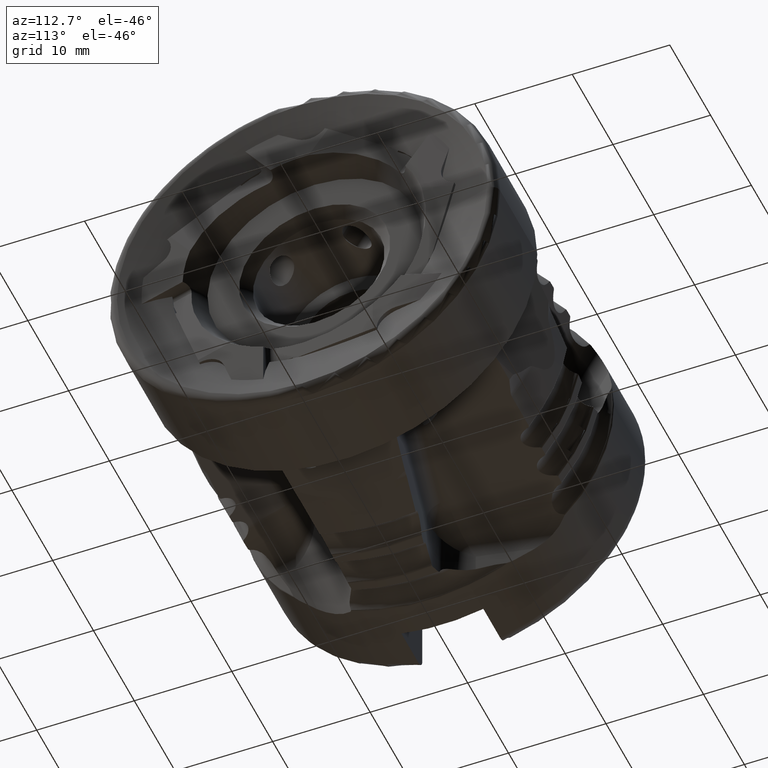
[diagram: clean part render]
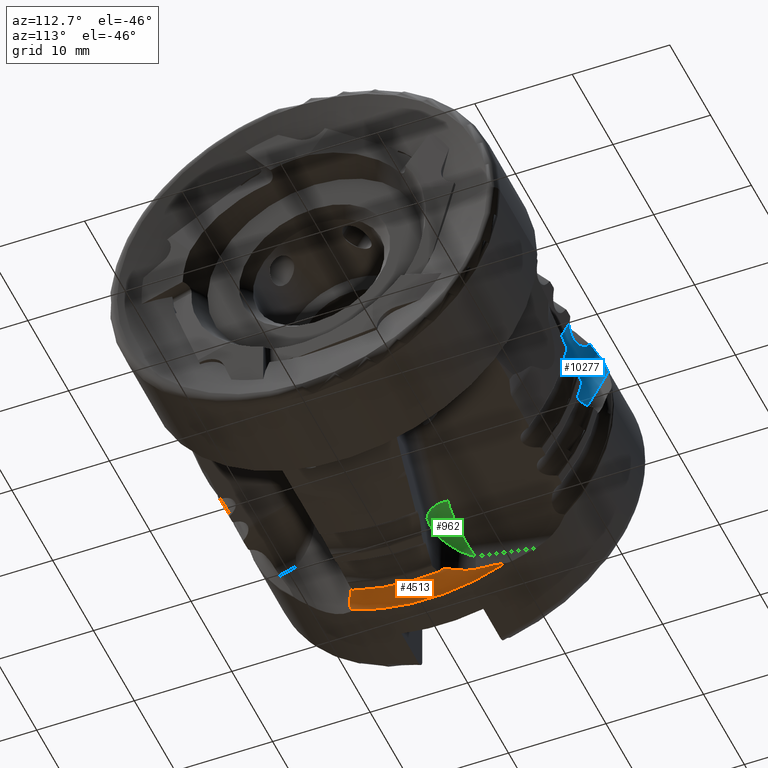
[diagram: same view with three faces highlighted in distinct colors, each labeled with its STEP entity id]
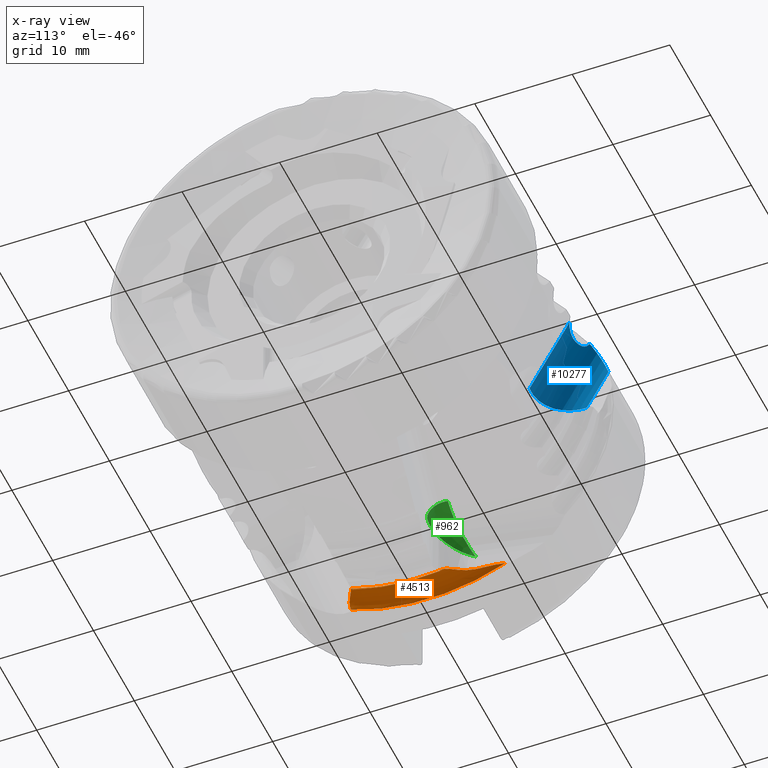
[diagram: x-ray of the same camera — body ghosted, the three highlighted faces saturated]
A machine part, auxiliary view with three faces highlighted in distinct colors.
The next image is the same camera in x-ray (body ghosted, the three faces saturated) — at least one of them is partly hidden behind the body in this view.
Their STEP definitions:

[orange] entity #4513 — the highlighted toroidal blend (fillet) surface has major radius 19.4 mm and minor (blend) radius 1.5 mm.
#80 = CARTESIAN_POINT ( 'NONE',  ( -29.64377987139388200, 4.790457688876037100, -17.45221796326517700 ) ) ;
#127 = CARTESIAN_POINT ( 'NONE',  ( -28.91074740480360100, 3.444622876629646500, -17.56163586437617500 ) ) ;
#231 = CARTESIAN_POINT ( 'NONE',  ( -30.20495896450877600, 7.430597747154335400, -17.11533831369642300 ) ) ;
#382 = FACE_OUTER_BOUND ( 'NONE', #8785, .T. ) ;
#664 = CARTESIAN_POINT ( 'NONE',  ( -27.99914979133900800, -6.909522613455851400, -16.83099462328203400 ) ) ;
#702 = CARTESIAN_POINT ( 'NONE',  ( -30.18893906240986500, -7.957240056837507700, -16.84482363932107400 ) ) ;
#980 = CARTESIAN_POINT ( 'NONE',  ( -28.56440808433381000, 3.074122376843445800, -17.66729879817631900 ) ) ;
#1089 = CARTESIAN_POINT ( 'NONE',  ( -30.27883005035329200, 7.778133881838410700, -17.12157753467884500 ) ) ;
#1121 = B_SPLINE_CURVE_WITH_KNOTS ( 'NONE', 3,
 ( #3964, #8922, #5634, #664, #6478, #1497, #7315, #2326, #8135, #3184, #8956, #3997, #9812, #4816, #10679, #5663, #702, #6510, #1538, #7345 ),
 .UNSPECIFIED., .F., .F.,
 ( 4, 2, 2, 2, 2, 2, 2, 2, 2, 4 ),
 ( 3.439349052326204900E-016, 0.0004581088631635120600, 0.0009162177263266802100, 0.001374326589489848400, 0.001832435452653016500, 0.002290544315816184700, 0.002748653178979352800, 0.003206762042142521000, 0.003435816473724108100, 0.003664870905305694800 ),
 .UNSPECIFIED. ) ;
#1497 = CARTESIAN_POINT ( 'NONE',  ( -28.33852763778335800, -7.066157082456153500, -16.55855417481301100 ) ) ;
#1538 = CARTESIAN_POINT ( 'NONE',  ( -30.28133301782327900, -7.933937765645276300, -17.05704149086403000 ) ) ;
#1555 = DIRECTION ( 'NONE',  ( -1.000000000000000000, -0.0000000000000000000, -0.0000000000000000000 ) ) ;
#1750 = B_SPLINE_CURVE_WITH_KNOTS ( 'NONE', 3,
 ( #8362, #80, #9236, #4265, #10095, #5102, #127, #5937, #980, #6789, #1810, #7610, #2652, #8444, #3496, #9268 ),
 .UNSPECIFIED., .F., .F.,
 ( 4, 2, 2, 2, 2, 2, 2, 4 ),
 ( 2.110738645395145900E-016, 0.001025636434929260900, 0.001538454652393783400, 0.002051272869858306300, 0.002564091087322829200, 0.003076909304787351700, 0.003589727522251874100, 0.004102545739716396600 ),
 .UNSPECIFIED. ) ;
#1810 = CARTESIAN_POINT ( 'NONE',  ( -28.19384683758602600, 2.766471363224603000, -17.85595326169269000 ) ) ;
#1952 = VERTEX_POINT ( 'NONE', #2764 ) ;
#2293 = VERTEX_POINT ( 'NONE', #8409 ) ;
#2326 = CARTESIAN_POINT ( 'NONE',  ( -28.71774690247424600, -7.247839137565280900, -16.37303150340224500 ) ) ;
#2339 = TOROIDAL_SURFACE ( 'NONE', #8938, 19.40000000000000600, 1.500000000000000900 ) ;
#2478 = CARTESIAN_POINT ( 'NONE',  ( -27.53622823337709100, -6.652552014576592400, -17.54676708234665100 ) ) ;
#2585 = CARTESIAN_POINT ( 'NONE',  ( -27.65313956114070100, -6.731855317377479300, -17.30269661287275100 ) ) ;
#2652 = CARTESIAN_POINT ( 'NONE',  ( -27.83836801739940700, 2.535188794796212600, -18.15250080671034600 ) ) ;
#2764 = CARTESIAN_POINT ( 'NONE',  ( -30.30346826946635700, 7.894047589321580500, -17.14010247938594800 ) ) ;
#2975 = CARTESIAN_POINT ( 'NONE',  ( -27.49653173053660300, 0.0000000000000000000, 0.0000000000000000000 ) ) ;
#3184 = CARTESIAN_POINT ( 'NONE',  ( -29.11889385570934500, -7.455456270013415000, -16.28469853053570300 ) ) ;
#3328 = EDGE_CURVE ( 'NONE', #2293, #8022, #1750, .T. ) ;
#3349 = EDGE_CURVE ( 'NONE', #2293, #1952, #3817, .T. ) ;
#3496 = CARTESIAN_POINT ( 'NONE',  ( -27.55584095093114900, 2.387549608182169000, -18.56048647098283800 ) ) ;
#3541 = CIRCLE ( 'NONE', #7152, 18.87058823529417900 ) ;
#3565 = B_SPLINE_CURVE_WITH_KNOTS ( 'NONE', 3,
 ( #4964, #4105, #2478, #10828 ),
 .UNSPECIFIED., .F., .F.,
 ( 4, 4 ),
 ( 0.004915268141662715000, 0.005335426860116687000 ),
 .UNSPECIFIED. ) ;
#3569 = CARTESIAN_POINT ( 'NONE',  ( -29.81276730862609300, 5.585481074202304400, -17.33206133602459400 ) ) ;
#3750 = EDGE_CURVE ( 'NONE', #5972, #1952, #10034, .T. ) ;
#3757 = EDGE_CURVE ( 'NONE', #6561, #8581, #3565, .T. ) ;
#3809 = DIRECTION ( 'NONE',  ( 0.0000000000000000000, 0.0000000000000000000, 1.000000000000000000 ) ) ;
#3817 = B_SPLINE_CURVE_WITH_KNOTS ( 'NONE', 3,
 ( #7690, #3569, #9349, #4363, #10209, #5211, #231, #6044, #1089, #6892 ),
 .UNSPECIFIED., .F., .F.,
 ( 4, 2, 2, 2, 4 ),
 ( 0.003966206436067385200, 0.005390308381826081100, 0.006102359354705428100, 0.006458384841145104300, 0.006814410327584779500 ),
 .UNSPECIFIED. ) ;
#3964 = CARTESIAN_POINT ( 'NONE',  ( -27.65313956114070100, -6.731855317377479300, -17.30269661287275100 ) ) ;
#3972 = EDGE_CURVE ( 'NONE', #8022, #8581, #3541, .T. ) ;
#3997 = CARTESIAN_POINT ( 'NONE',  ( -29.52391000557897300, -7.678980970541595700, -16.31146433486070500 ) ) ;
#4105 = CARTESIAN_POINT ( 'NONE',  ( -27.58785649824254800, -6.692897170091943500, -17.42259746141228800 ) ) ;
#4141 = DIRECTION ( 'NONE',  ( 1.000000000000000000, 0.0000000000000000000, 0.0000000000000000000 ) ) ;
#4218 = ORIENTED_EDGE ( 'NONE', *, *, #3328, .T. ) ;
#4265 = CARTESIAN_POINT ( 'NONE',  ( -29.29694184733125400, 4.008941027807605200, -17.49843725448994600 ) ) ;
#4363 = CARTESIAN_POINT ( 'NONE',  ( -30.05732499002264600, 6.736034505604846100, -17.17033854051695100 ) ) ;
#4513 = ADVANCED_FACE ( 'NONE', ( #382 ), #2339, .F. ) ;
#4520 = ORIENTED_EDGE ( 'NONE', *, *, #3972, .T. ) ;
#4816 = CARTESIAN_POINT ( 'NONE',  ( -29.90274254800098700, -7.879389711942336800, -16.48816031181688000 ) ) ;
#4863 = DIRECTION ( 'NONE',  ( 0.0000000000000000000, 0.0000000000000000000, 1.000000000000000000 ) ) ;
#4895 = CARTESIAN_POINT ( 'NONE',  ( -27.49653173053660300, 2.360491634166904400, -18.72237109959769800 ) ) ;
#4964 = CARTESIAN_POINT ( 'NONE',  ( -27.65313956114070100, -6.731855317377479300, -17.30269661287275100 ) ) ;
#5102 = CARTESIAN_POINT ( 'NONE',  ( -29.01560462249150900, 3.578148630981833100, -17.54061041120928600 ) ) ;
#5211 = CARTESIAN_POINT ( 'NONE',  ( -30.18034154159472500, 7.314781878095082800, -17.12036071886312500 ) ) ;
#5269 = CARTESIAN_POINT ( 'NONE',  ( -30.30346826946338700, -7.916380327103159900, -17.12979926510164900 ) ) ;
#5634 = CARTESIAN_POINT ( 'NONE',  ( -27.80834080706495100, -6.817416021026183200, -17.05121354151513900 ) ) ;
#5663 = CARTESIAN_POINT ( 'NONE',  ( -30.14973779057751800, -7.955724373684228500, -16.77627133670408500 ) ) ;
#5727 = ORIENTED_EDGE ( 'NONE', *, *, #3757, .F. ) ;
#5937 = CARTESIAN_POINT ( 'NONE',  ( -28.68561604439862800, 3.192860460511549400, -17.62471495191580900 ) ) ;
#5972 = VERTEX_POINT ( 'NONE', #5269 ) ;
#6044 = CARTESIAN_POINT ( 'NONE',  ( -30.25420347415342100, 7.662274949955040900, -17.11623575627044900 ) ) ;
#6239 = AXIS2_PLACEMENT_3D ( 'NONE', #9109, #4141, #9965 ) ;
#6400 = EDGE_CURVE ( 'NONE', #6561, #5972, #1121, .T. ) ;
#6478 = CARTESIAN_POINT ( 'NONE',  ( -28.10756528070912500, -6.959283939913308200, -16.73033207503525700 ) ) ;
#6510 = CARTESIAN_POINT ( 'NONE',  ( -30.25430053356358300, -7.946294053369856900, -16.98451347487240400 ) ) ;
#6561 = VERTEX_POINT ( 'NONE', #2585 ) ;
#6789 = CARTESIAN_POINT ( 'NONE',  ( -28.31978897849353400, 2.862048167367027900, -17.78232068299098100 ) ) ;
#6892 = CARTESIAN_POINT ( 'NONE',  ( -30.30346826946635700, 7.894047589321580500, -17.14010247938594800 ) ) ;
#7152 = AXIS2_PLACEMENT_3D ( 'NONE', #2975, #8768, #3809 ) ;
#7315 = CARTESIAN_POINT ( 'NONE',  ( -28.46079535210618200, -7.123179069023799500, -16.48693461141973400 ) ) ;
#7345 = CARTESIAN_POINT ( 'NONE',  ( -30.30346826946338700, -7.916380327103159900, -17.12979926510164900 ) ) ;
#7610 = CARTESIAN_POINT ( 'NONE',  ( -27.95260830680334200, 2.602802632481749300, -18.04156460643386600 ) ) ;
#7690 = CARTESIAN_POINT ( 'NONE',  ( -29.71508046417889700, 5.125900604516077800, -17.40152047421253600 ) ) ;
#8022 = VERTEX_POINT ( 'NONE', #4895 ) ;
#8135 = CARTESIAN_POINT ( 'NONE',  ( -28.85197309704625100, -7.315381705899196300, -16.33141791564157300 ) ) ;
#8139 = ORIENTED_EDGE ( 'NONE', *, *, #6400, .T. ) ;
#8362 = CARTESIAN_POINT ( 'NONE',  ( -29.71508046417889700, 5.125900604516077800, -17.40152047421253600 ) ) ;
#8409 = CARTESIAN_POINT ( 'NONE',  ( -29.71508046417889700, 5.125900604516077800, -17.40152047421253600 ) ) ;
#8444 = CARTESIAN_POINT ( 'NONE',  ( -27.63799013213961300, 2.426617513607204100, -18.41485402074563300 ) ) ;
#8581 = VERTEX_POINT ( 'NONE', #10163 ) ;
#8768 = DIRECTION ( 'NONE',  ( -1.000000000000000000, -0.0000000000000000000, -0.0000000000000000000 ) ) ;
#8785 = EDGE_LOOP ( 'NONE', ( #5727, #8139, #9212, #9865, #4218, #4520 ) ) ;
#8922 = CARTESIAN_POINT ( 'NONE',  ( -27.72442183413433300, -6.774393537351670600, -17.17177743355745200 ) ) ;
#8938 = AXIS2_PLACEMENT_3D ( 'NONE', #9863, #1555, #4863 ) ;
#8956 = CARTESIAN_POINT ( 'NONE',  ( -29.25476609196908800, -7.529756949694280400, -16.27860318237120300 ) ) ;
#9109 = CARTESIAN_POINT ( 'NONE',  ( -30.30346826946338700, 0.0000000000000000000, 0.0000000000000000000 ) ) ;
#9212 = ORIENTED_EDGE ( 'NONE', *, *, #3750, .T. ) ;
#9236 = CARTESIAN_POINT ( 'NONE',  ( -29.53001696970838800, 4.468211847632515400, -17.46905390047686200 ) ) ;
#9268 = CARTESIAN_POINT ( 'NONE',  ( -27.49653173053660300, 2.360491634166904400, -18.72237109959769800 ) ) ;
#9349 = CARTESIAN_POINT ( 'NONE',  ( -29.91036695292679300, 6.044651299453819100, -17.25954888940381000 ) ) ;
#9812 = CARTESIAN_POINT ( 'NONE',  ( -29.65653682419578300, -7.753805805597897600, -16.35052963983952500 ) ) ;
#9863 = CARTESIAN_POINT ( 'NONE',  ( -28.89999999999999500, 0.0000000000000000000, 0.0000000000000000000 ) ) ;
#9865 = ORIENTED_EDGE ( 'NONE', *, *, #3349, .F. ) ;
#9965 = DIRECTION ( 'NONE',  ( 0.0000000000000000000, 0.0000000000000000000, -1.000000000000000000 ) ) ;
#10034 = CIRCLE ( 'NONE', #6239, 18.87058823529417900 ) ;
#10095 = CARTESIAN_POINT ( 'NONE',  ( -29.20847049996898200, 3.859798109041491500, -17.50899404205864900 ) ) ;
#10163 = CARTESIAN_POINT ( 'NONE',  ( -27.49653173053729600, -6.610994871005014600, -17.67466681896891600 ) ) ;
#10209 = CARTESIAN_POINT ( 'NONE',  ( -30.10649664955781200, 6.967368975587035600, -17.14378051167750200 ) ) ;
#10679 = CARTESIAN_POINT ( 'NONE',  ( -30.01608994542469200, -7.928640033668530800, -16.58943816605024300 ) ) ;
#10828 = CARTESIAN_POINT ( 'NONE',  ( -27.49653173053729600, -6.610994871005014600, -17.67466681896891600 ) ) ;

[blue] entity #10277 — the highlighted cylindrical surface (partial cylindrical patch) has radius 3.94 mm, axis along (-0.2079, 0.3023, 0.9303).
#514 = VERTEX_POINT ( 'NONE', #7551 ) ;
#611 = CARTESIAN_POINT ( 'NONE',  ( -27.72442183413564700, 15.57391702939781200, 9.910371152899449100 ) ) ;
#625 = CARTESIAN_POINT ( 'NONE',  ( -29.47880427769093000, 13.96677044402551400, -0.3171850201928377300 ) ) ;
#651 = CARTESIAN_POINT ( 'NONE',  ( -28.71774690247325500, 15.48745148780595600, 8.985887779640179900 ) ) ;
#668 = CARTESIAN_POINT ( 'NONE',  ( -30.90345421912288500, 18.23297878418853600, 5.344013908601930900 ) ) ;
#1412 = CARTESIAN_POINT ( 'NONE',  ( -30.30346826946338700, 16.47312960131922900, 9.205167107889089100 ) ) ;
#1488 = CARTESIAN_POINT ( 'NONE',  ( -29.11889385570850300, 15.60349645753766100, 8.792390614850965800 ) ) ;
#1611 = CYLINDRICAL_SURFACE ( 'NONE', #7023, 3.939999999999999900 ) ;
#1711 = CARTESIAN_POINT ( 'NONE',  ( -29.71508046417885400, 16.50530835584871500, 0.02679107363576710100 ) ) ;
#1831 = ORIENTED_EDGE ( 'NONE', *, *, #9451, .F. ) ;
#1964 = DIRECTION ( 'NONE',  ( 0.0000000000000000000, -0.9510565162951567500, 0.3090169943749375700 ) ) ;
#2099 = EDGE_CURVE ( 'NONE', #7371, #3548, #2250, .T. ) ;
#2131 = B_SPLINE_CURVE_WITH_KNOTS ( 'NONE', 3,
 ( #1412, #3052, #8084, #3125, #8904, #3945, #9747, #4756 ),
 .UNSPECIFIED., .F., .F.,
 ( 4, 2, 2, 4 ),
 ( 6.520806856012869300E-017, 8.010442833182820800E-005, 0.0001602088566635912000, 0.0003204177133271126900 ),
 .UNSPECIFIED. ) ;
#2250 = B_SPLINE_CURVE_WITH_KNOTS ( 'NONE', 3,
 ( #8912, #611, #3951, #9759, #4765, #10631, #5621, #651, #6462, #1488, #7299, #2312, #8120, #3174, #8945, #3986, #9801, #4808, #10666, #5653 ),
 .UNSPECIFIED., .F., .F.,
 ( 4, 2, 2, 2, 2, 2, 2, 2, 2, 4 ),
 ( 4.995958134348437500E-015, 0.0004581088631678986900, 0.0009162177263308014800, 0.001374326589493704000, 0.001832435452656607000, 0.002290544315819509700, 0.002748653178982412000, 0.003206762042145314700, 0.003435816473726762200, 0.003664870905308208800 ),
 .UNSPECIFIED. ) ;
#2312 = CARTESIAN_POINT ( 'NONE',  ( -29.52391000557839000, 15.80006428397547700, 8.682660082924215300 ) ) ;
#2425 = CARTESIAN_POINT ( 'NONE',  ( -30.96276559778233300, 17.24872691036613000, 7.974798367079977800 ) ) ;
#2509 = CARTESIAN_POINT ( 'NONE',  ( -27.94547007449177300, 16.04144846477628100, 11.34928495467572400 ) ) ;
#2737 = LINE ( 'NONE', #2509, #7157 ) ;
#3004 = CARTESIAN_POINT ( 'NONE',  ( -30.30346826946338700, 16.47312960131922900, 9.205167107889089100 ) ) ;
#3052 = CARTESIAN_POINT ( 'NONE',  ( -30.31109548541561300, 16.48297119286183900, 9.229005471808973100 ) ) ;
#3108 = CARTESIAN_POINT ( 'NONE',  ( -27.71539349521942700, 12.27660630165301100, -0.2377077908324001200 ) ) ;
#3125 = CARTESIAN_POINT ( 'NONE',  ( -30.35936185749188700, 16.53221135292359600, 9.268857215664908700 ) ) ;
#3157 = LINE ( 'NONE', #9266, #9225 ) ;
#3174 = CARTESIAN_POINT ( 'NONE',  ( -29.90274254800066000, 16.06605765098429800, 8.707812828493391800 ) ) ;
#3213 = CARTESIAN_POINT ( 'NONE',  ( -30.66244528173962900, 16.80013981598390100, 8.879956669976508000 ) ) ;
#3293 = CARTESIAN_POINT ( 'NONE',  ( -31.06320411126327500, 17.66580790945453900, 7.003043041982958300 ) ) ;
#3329 = DIRECTION ( 'NONE',  ( -0.2079116908177468500, 0.3022642316338178800, 0.9302736495763616100 ) ) ;
#3548 = VERTEX_POINT ( 'NONE', #3004 ) ;
#3933 = CARTESIAN_POINT ( 'NONE',  ( -25.45783023710121300, 12.42489116069633500, 0.2186660786575710900 ) ) ;
#3945 = CARTESIAN_POINT ( 'NONE',  ( -30.43535726428124700, 16.60090889162347900, 9.234792699115464700 ) ) ;
#3951 = CARTESIAN_POINT ( 'NONE',  ( -27.80834080706404900, 15.53785727212695500, 9.787544933901479300 ) ) ;
#3986 = CARTESIAN_POINT ( 'NONE',  ( -30.14973779057739700, 16.29716110104508400, 8.896031155483282000 ) ) ;
#4029 = CARTESIAN_POINT ( 'NONE',  ( -30.49059737205868000, 16.64905138338780300, 9.154730363768923200 ) ) ;
#4094 = CARTESIAN_POINT ( 'NONE',  ( -31.01028168513688100, 18.02644748408902200, 6.014175510297405000 ) ) ;
#4553 = VERTEX_POINT ( 'NONE', #7468 ) ;
#4636 = ORIENTED_EDGE ( 'NONE', *, *, #2099, .F. ) ;
#4756 = CARTESIAN_POINT ( 'NONE',  ( -30.49059737205868000, 16.64905138338780300, 9.154730363768923200 ) ) ;
#4765 = CARTESIAN_POINT ( 'NONE',  ( -28.10756528070802700, 15.46402143573218900, 9.444558503843829600 ) ) ;
#4808 = CARTESIAN_POINT ( 'NONE',  ( -30.25430053356355500, 16.41193346936962200, 9.070045587411673400 ) ) ;
#4915 = CARTESIAN_POINT ( 'NONE',  ( -30.90345421912288500, 18.23297878418853600, 5.344013908601930900 ) ) ;
#4982 = CARTESIAN_POINT ( 'NONE',  ( -25.45783023710122000, 16.17205383489924800, -0.9988608791796842500 ) ) ;
#5133 = DIRECTION ( 'NONE',  ( 0.2079116908177469100, -0.3022642316338178800, -0.9302736495763616100 ) ) ;
#5621 = CARTESIAN_POINT ( 'NONE',  ( -28.46079535210505500, 15.45354994091902000, 9.151310679577127500 ) ) ;
#5626 = CARTESIAN_POINT ( 'NONE',  ( -27.65313956113554300, 15.61645524937243000, 10.04129033221607700 ) ) ;
#5653 = CARTESIAN_POINT ( 'NONE',  ( -30.30346826946338700, 16.47312960131922900, 9.205167107889089100 ) ) ;
#6178 = ORIENTED_EDGE ( 'NONE', *, *, #6518, .F. ) ;
#6249 = EDGE_LOOP ( 'NONE', ( #4636, #6178, #9684, #1831, #7689, #8906 ) ) ;
#6382 = EDGE_CURVE ( 'NONE', #514, #6535, #8032, .T. ) ;
#6436 = CARTESIAN_POINT ( 'NONE',  ( -29.71508046417885400, 16.50530835584871500, 0.02679107363576710100 ) ) ;
#6462 = CARTESIAN_POINT ( 'NONE',  ( -28.85197309704527400, 15.51763472025105800, 8.912521154376168700 ) ) ;
#6518 = EDGE_CURVE ( 'NONE', #514, #7371, #2737, .T. ) ;
#6535 = VERTEX_POINT ( 'NONE', #1711 ) ;
#6644 = DIRECTION ( 'NONE',  ( -0.2079116908177469100, 0.3022642316338179400, 0.9302736495763617200 ) ) ;
#7023 = AXIS2_PLACEMENT_3D ( 'NONE', #4982, #6644, #1964 ) ;
#7157 = VECTOR ( 'NONE', #3329, 999.9999999999998900 ) ;
#7299 = CARTESIAN_POINT ( 'NONE',  ( -29.25476609196842400, 15.66002421433442000, 8.743786530847440700 ) ) ;
#7371 = VERTEX_POINT ( 'NONE', #5626 ) ;
#7410 = CARTESIAN_POINT ( 'NONE',  ( -30.78589393479466500, 16.95184461417226600, 8.587837515983242300 ) ) ;
#7468 = CARTESIAN_POINT ( 'NONE',  ( -30.49059737205868000, 16.64905138338780300, 9.154730363768923200 ) ) ;
#7551 = CARTESIAN_POINT ( 'NONE',  ( -25.45783023710121300, 12.42489116069633500, 0.2186660786575710900 ) ) ;
#7689 = ORIENTED_EDGE ( 'NONE', *, *, #10219, .F. ) ;
#7886 = EDGE_CURVE ( 'NONE', #3548, #4553, #2131, .T. ) ;
#8032 =( BOUNDED_CURVE ( )  B_SPLINE_CURVE ( 3, ( #3933, #3108, #625, #6436 ),
 .UNSPECIFIED., .F., .F. ) 
 B_SPLINE_CURVE_WITH_KNOTS ( ( 4, 4 ),
 ( 0.0000000000000000000, 1.570796326794897000 ),
 .UNSPECIFIED. ) 
 CURVE ( )  GEOMETRIC_REPRESENTATION_ITEM ( )  RATIONAL_B_SPLINE_CURVE ( ( 1.000000000000000000, 0.8047378541243649400, 0.8047378541243649400, 1.000000000000000000 ) ) 
 REPRESENTATION_ITEM ( '' )  );
#8084 = CARTESIAN_POINT ( 'NONE',  ( -30.32384491038895600, 16.49713571917226000, 9.250315120981294800 ) ) ;
#8120 = CARTESIAN_POINT ( 'NONE',  ( -29.65653682419531700, 15.88356085728021400, 8.670283643991123100 ) ) ;
#8224 = FACE_OUTER_BOUND ( 'NONE', #6249, .T. ) ;
#8240 = CARTESIAN_POINT ( 'NONE',  ( -31.01546761361657500, 17.39489212542778800, 7.651216170409956200 ) ) ;
#8504 = B_SPLINE_CURVE_WITH_KNOTS ( 'NONE', 3,
 ( #4029, #3213, #7410, #2425, #8240, #3293, #9054, #4094, #9923, #4915 ),
 .UNSPECIFIED., .F., .F.,
 ( 4, 2, 2, 2, 4 ),
 ( 1.734723475976806900E-018, 0.001053540399753483900, 0.002107080799506966200, 0.003160621199260450800, 0.004214161599013935800 ),
 .UNSPECIFIED. ) ;
#8904 = CARTESIAN_POINT ( 'NONE',  ( -30.38043221258014600, 16.55153868800771000, 9.264941716903026100 ) ) ;
#8906 = ORIENTED_EDGE ( 'NONE', *, *, #7886, .F. ) ;
#8912 = CARTESIAN_POINT ( 'NONE',  ( -27.65313956113554300, 15.61645524937243000, 10.04129033221607700 ) ) ;
#8945 = CARTESIAN_POINT ( 'NONE',  ( -30.01608994542445400, 16.16543162734148000, 8.760799720940635600 ) ) ;
#9054 = CARTESIAN_POINT ( 'NONE',  ( -31.05932827188938100, 17.79210061445541100, 6.675647660742417800 ) ) ;
#9225 = VECTOR ( 'NONE', #5133, 999.9999999999998900 ) ;
#9266 = CARTESIAN_POINT ( 'NONE',  ( -29.31173178399242800, 15.91891574647911300, -1.777939806542360400 ) ) ;
#9451 = EDGE_CURVE ( 'NONE', #9742, #6535, #3157, .T. ) ;
#9684 = ORIENTED_EDGE ( 'NONE', *, *, #6382, .T. ) ;
#9742 = VERTEX_POINT ( 'NONE', #668 ) ;
#9747 = CARTESIAN_POINT ( 'NONE',  ( -30.46494203838642200, 16.62649525128701500, 9.195751583143186600 ) ) ;
#9759 = CARTESIAN_POINT ( 'NONE',  ( -27.99914979133789200, 15.48293163828319100, 9.555245189898919000 ) ) ;
#9801 = CARTESIAN_POINT ( 'NONE',  ( -30.18893906240979100, 16.33868134696315300, 8.950600237099331800 ) ) ;
#9923 = CARTESIAN_POINT ( 'NONE',  ( -30.96474515370250600, 18.13476138090835100, 5.679117046593981800 ) ) ;
#10219 = EDGE_CURVE ( 'NONE', #4553, #9742, #8504, .T. ) ;
#10277 = ADVANCED_FACE ( 'NONE', ( #8224 ), #1611, .F. ) ;
#10631 = CARTESIAN_POINT ( 'NONE',  ( -28.33852763778221400, 15.44951510787104500, 9.242768806252980700 ) ) ;
#10666 = CARTESIAN_POINT ( 'NONE',  ( -30.28133301782325800, 16.44456792079097700, 9.135984828614825300 ) ) ;

[green] entity #962 — the highlighted face is a freeform B-spline surface patch.
#38 = CARTESIAN_POINT ( 'NONE',  ( -27.56068955871050700, 2.381119559419111900, -14.14669337222453300 ) ) ;
#76 = CARTESIAN_POINT ( 'NONE',  ( -27.48078372905384700, 2.278392836558490700, -12.43938286495318800 ) ) ;
#86 = FACE_OUTER_BOUND ( 'NONE', #1511, .T. ) ;
#121 = CARTESIAN_POINT ( 'NONE',  ( -28.88833284802155900, 3.312720975197057900, -13.74375436936699800 ) ) ;
#128 =( BOUNDED_CURVE ( )  B_SPLINE_CURVE ( 3, ( #5200, #3515, #6036, #1081 ),
 .UNSPECIFIED., .F., .T. ) 
 B_SPLINE_CURVE_WITH_KNOTS ( ( 4, 4 ),
 ( 0.0000000000000000000, 1.570796326794896800 ),
 .UNSPECIFIED. ) 
 CURVE ( )  GEOMETRIC_REPRESENTATION_ITEM ( )  RATIONAL_B_SPLINE_CURVE ( ( 1.000000000000000000, 0.8047378541243649400, 0.8047378541243649400, 1.000000000000000000 ) ) 
 REPRESENTATION_ITEM ( '' )  );
#418 = CARTESIAN_POINT ( 'NONE',  ( -25.45783023710120600, 4.047466320914190300, -11.74920216823979400 ) ) ;
#451 = CARTESIAN_POINT ( 'NONE',  ( -25.42277222500457900, 2.010236941905176000, -11.74920216844557800 ) ) ;
#511 = CARTESIAN_POINT ( 'NONE',  ( -27.71539349521942700, 3.567606437016039900, -11.74920216823979200 ) ) ;
#897 = CARTESIAN_POINT ( 'NONE',  ( -28.39431134062192200, 2.839009714991556100, -13.17768198985319800 ) ) ;
#941 = CARTESIAN_POINT ( 'NONE',  ( -27.44252555312674200, 3.887741287070376000, -12.26994567293498400 ) ) ;
#962 = ADVANCED_FACE ( 'NONE', ( #86 ), #8831, .F. ) ;
#978 = CARTESIAN_POINT ( 'NONE',  ( -29.02553158574685800, 4.273620700672446500, -13.70494339696231000 ) ) ;
#1039 = VERTEX_POINT ( 'NONE', #5108 ) ;
#1042 = ORIENTED_EDGE ( 'NONE', *, *, #9980, .F. ) ;
#1081 = CARTESIAN_POINT ( 'NONE',  ( -29.71508046417885400, 5.125900604515869000, -15.68920216823977900 ) ) ;
#1284 = DIRECTION ( 'NONE',  ( -0.9781476007338085800, -0.2079116908177465800, 2.541384419970202700E-016 ) ) ;
#1375 = CARTESIAN_POINT ( 'NONE',  ( -25.29424697527125300, 2.037555826865492300, -13.74920216824431000 ) ) ;
#1511 = EDGE_LOOP ( 'NONE', ( #1042, #4735, #1714 ) ) ;
#1714 = ORIENTED_EDGE ( 'NONE', *, *, #8736, .F. ) ;
#1736 = CARTESIAN_POINT ( 'NONE',  ( -27.89131390085576400, 3.936584794401677200, -12.55647811860054300 ) ) ;
#1806 = CARTESIAN_POINT ( 'NONE',  ( -29.50344827720671100, 4.374485534000063700, -14.91020651403325700 ) ) ;
#2121 = CARTESIAN_POINT ( 'NONE',  ( -25.04200685546571800, 2.091171119446588300, -13.74920216823979400 ) ) ;
#2173 = CARTESIAN_POINT ( 'NONE',  ( -29.71508046417885400, 5.125900604515869000, -15.68920216823977900 ) ) ;
#2212 = AXIS2_PLACEMENT_3D ( 'NONE', #6255, #1284, #7085 ) ;
#2596 =( BOUNDED_CURVE ( )  B_SPLINE_CURVE ( 3, ( #6329, #511, #7170, #2173 ),
 .UNSPECIFIED., .F., .T. ) 
 B_SPLINE_CURVE_WITH_KNOTS ( ( 4, 4 ),
 ( 2.020908820997474300E-018, 1.570796326794896800 ),
 .UNSPECIFIED. ) 
 CURVE ( )  GEOMETRIC_REPRESENTATION_ITEM ( )  RATIONAL_B_SPLINE_CURVE ( ( 1.000000000000000000, 0.8047378541243649400, 0.8047378541243649400, 1.000000000000000000 ) ) 
 REPRESENTATION_ITEM ( '' )  );
#2605 = CARTESIAN_POINT ( 'NONE',  ( -29.71508046417885400, 5.125900604515869000, -15.68920216823977900 ) ) ;
#2648 = CARTESIAN_POINT ( 'NONE',  ( -29.66227272690766300, 4.877459733736384500, -15.17336439544376100 ) ) ;
#3007 = VERTEX_POINT ( 'NONE', #3655 ) ;
#3453 = CARTESIAN_POINT ( 'NONE',  ( -26.72021825899330900, 3.880434403640792100, -11.95043331996785200 ) ) ;
#3491 = CARTESIAN_POINT ( 'NONE',  ( -29.60783176064899500, 4.621335124686744700, -15.43521098062008400 ) ) ;
#3515 = CARTESIAN_POINT ( 'NONE',  ( -27.29957011358394300, 1.611311235548436500, -13.74920216823979400 ) ) ;
#3655 = CARTESIAN_POINT ( 'NONE',  ( -29.71508046417885400, 5.125900604515869000, -15.68920216823977900 ) ) ;
#4021 = VERTEX_POINT ( 'NONE', #4716 ) ;
#4224 = CARTESIAN_POINT ( 'NONE',  ( -27.20649693932552900, 3.876424449802772000, -12.14780030032279400 ) ) ;
#4260 = CARTESIAN_POINT ( 'NONE',  ( -27.08166088344240700, 2.190006496625750200, -14.00560886852117500 ) ) ;
#4301 = CARTESIAN_POINT ( 'NONE',  ( -28.69513957815550100, 4.123840171949098900, -13.26788808077225900 ) ) ;
#4406 = CIRCLE ( 'NONE', #2212, 2.000000000000001300 ) ;
#4716 = CARTESIAN_POINT ( 'NONE',  ( -25.45783023710121300, 4.047466320914190300, -11.74920216823979400 ) ) ;
#4735 = ORIENTED_EDGE ( 'NONE', *, *, #8596, .T. ) ;
#5005 = CARTESIAN_POINT ( 'NONE',  ( -28.10406258318817400, 3.974110261415392000, -12.72085813516107100 ) ) ;
#5099 = CARTESIAN_POINT ( 'NONE',  ( -28.43959668174605300, 2.921605367238806500, -14.49698152618718400 ) ) ;
#5108 = CARTESIAN_POINT ( 'NONE',  ( -25.04200685546572600, 2.091171119446587800, -13.74920216823979400 ) ) ;
#5130 = CARTESIAN_POINT ( 'NONE',  ( -29.50919805305383600, 4.650527009869494000, -14.65791549248036100 ) ) ;
#5200 = CARTESIAN_POINT ( 'NONE',  ( -25.04200685546572600, 2.091171119446587800, -13.74920216823979400 ) ) ;
#5420 = CARTESIAN_POINT ( 'NONE',  ( -25.71007035690781400, 3.993851028337478800, -11.74920216823979400 ) ) ;
#5500 = CARTESIAN_POINT ( 'NONE',  ( -26.46998016072763700, 3.895761096285308000, -11.87521657027124400 ) ) ;
#5897 = CARTESIAN_POINT ( 'NONE',  ( -26.83274117779057700, 2.118041840494544900, -13.94546622312333600 ) ) ;
#5935 = CARTESIAN_POINT ( 'NONE',  ( -29.71508046417885400, 5.125900604515869900, -15.68920216823977900 ) ) ;
#6036 = CARTESIAN_POINT ( 'NONE',  ( -29.23522058028070000, 2.868337346397653100, -14.55277647924359200 ) ) ;
#6255 = CARTESIAN_POINT ( 'NONE',  ( -25.45783023710121600, 4.047466320914204600, -13.74920216823979400 ) ) ;
#6329 = CARTESIAN_POINT ( 'NONE',  ( -25.45783023710121300, 4.047466320914190300, -11.74920216823979400 ) ) ;
#6347 = CARTESIAN_POINT ( 'NONE',  ( -25.55175561730827000, 2.008785660937711300, -13.76170757978263900 ) ) ;
#6699 = CARTESIAN_POINT ( 'NONE',  ( -28.19939826083480500, 2.684562582797833700, -12.98608519007664500 ) ) ;
#6743 = CARTESIAN_POINT ( 'NONE',  ( -27.74385983369657500, 2.403273145173009600, -12.61623083693299700 ) ) ;
#6785 = CARTESIAN_POINT ( 'NONE',  ( -28.81611503947465600, 3.288393311657233500, -14.71218135192558300 ) ) ;
#7085 = DIRECTION ( 'NONE',  ( 0.2079116908177464900, -0.9781476007338083500, 0.0000000000000000000 ) ) ;
#7103 = CARTESIAN_POINT ( 'NONE',  ( -25.04200685546571100, 2.091171119446589200, -11.74920216823981000 ) ) ;
#7170 = CARTESIAN_POINT ( 'NONE',  ( -29.47880427769093000, 4.014308543411967600, -13.38120360398978400 ) ) ;
#7537 = CARTESIAN_POINT ( 'NONE',  ( -26.32563259766294200, 2.024054820577095200, -13.84828552721245700 ) ) ;
#7608 = CARTESIAN_POINT ( 'NONE',  ( -29.40035716144218000, 4.138470874050756100, -15.18141126697744200 ) ) ;
#8440 = CARTESIAN_POINT ( 'NONE',  ( -29.63497865428372100, 4.749509919819376900, -15.30438242022743500 ) ) ;
#8596 = EDGE_CURVE ( 'NONE', #1039, #3007, #128, .T. ) ;
#8728 = CARTESIAN_POINT ( 'NONE',  ( -25.80799686929664800, 1.981006330014223100, -11.80070302269641600 ) ) ;
#8736 = EDGE_CURVE ( 'NONE', #4021, #3007, #2596, .T. ) ;
#8831 =( BOUNDED_SURFACE ( )  B_SPLINE_SURFACE ( 3, 2, ( 
 ( #5935, #2605, #9264 ),
 ( #3491, #8440, #2648 ),
 ( #7608, #1806, #5130 ),
 ( #6785, #10131, #978 ),
 ( #5099, #121, #4301 ),
 ( #10091, #897, #5005 ),
 ( #38, #6699, #1736 ),
 ( #4260, #6743, #941 ),
 ( #5897, #76, #4224 ),
 ( #7537, #9190, #3453 ),
 ( #10055, #10509, #5500 ),
 ( #6347, #8728, #9557 ),
 ( #1375, #451, #5420 ),
 ( #2121, #7103, #418 ) ),
 .UNSPECIFIED., .F., .F., .F. ) 
 B_SPLINE_SURFACE_WITH_KNOTS ( ( 4, 2, 2, 2, 2, 2, 4 ),
 ( 3, 3 ),
 ( 4.712388980384689700, 5.105088062083414300, 5.497787143782138000, 5.694136684631500200, 5.890486225480861600, 6.086835766330223900, 6.283185307179586200 ),
 ( 0.0000000000000000000, 1.000000000000000000 ),
 .UNSPECIFIED. ) 
 GEOMETRIC_REPRESENTATION_ITEM ( )  RATIONAL_B_SPLINE_SURFACE ( (
 ( 1.000000000000000000, 1.000000000000000000, 1.000000000000000000),
 ( 1.000000000000000000, 1.000158582244072800, 1.000000000000000000),
 ( 1.000000000000000000, 0.9867291872917157700, 1.000000000000000000),
 ( 1.000000000000000000, 0.9386556524705982300, 1.000000000000000000),
 ( 1.000000000000000000, 0.9038128864489057800, 1.000000000000000000),
 ( 1.000000000000000000, 0.8471316624522079500, 1.000000000000000000),
 ( 1.000000000000000000, 0.8275942667867792800, 1.000000000000000000),
 ( 1.000000000000000000, 0.7902180114565662300, 1.000000000000000000),
 ( 1.000000000000000000, 0.7723968185771406000, 1.000000000000000000),
 ( 1.000000000000000000, 0.7418334211200682300, 1.000000000000000000),
 ( 1.000000000000000000, 0.7291288916164928600, 1.000000000000000000),
 ( 1.000000000000000000, 0.7117460049268287100, 1.000000000000000000),
 ( 1.000000000000000000, 0.7070717265765748000, 1.000000000000000000),
 ( 1.000000000000000000, 0.7071067811865502400, 1.000000000000000000) ) ) 
 REPRESENTATION_ITEM ( '' )  SURFACE ( )  );
#9190 = CARTESIAN_POINT ( 'NONE',  ( -26.87833658008213100, 2.084591019406267800, -12.12456027711646700 ) ) ;
#9264 = CARTESIAN_POINT ( 'NONE',  ( -29.71508046417885400, 5.125900604515869000, -15.68920216823977900 ) ) ;
#9557 = CARTESIAN_POINT ( 'NONE',  ( -25.96489856465673900, 3.952470410552892500, -11.77459975663088600 ) ) ;
#9980 = EDGE_CURVE ( 'NONE', #1039, #4021, #4406, .T. ) ;
#10055 = CARTESIAN_POINT ( 'NONE',  ( -26.06745620416493700, 2.002034770454694400, -13.81124986873241600 ) ) ;
#10091 = CARTESIAN_POINT ( 'NONE',  ( -27.79078673199733300, 2.500263259329876600, -14.22763175601324500 ) ) ;
#10131 = CARTESIAN_POINT ( 'NONE',  ( -29.13600283594369200, 3.663411444359943900, -14.13827489633447100 ) ) ;
#10509 = CARTESIAN_POINT ( 'NONE',  ( -26.53963014342815200, 2.019696318195011800, -11.99066265289083700 ) ) ;